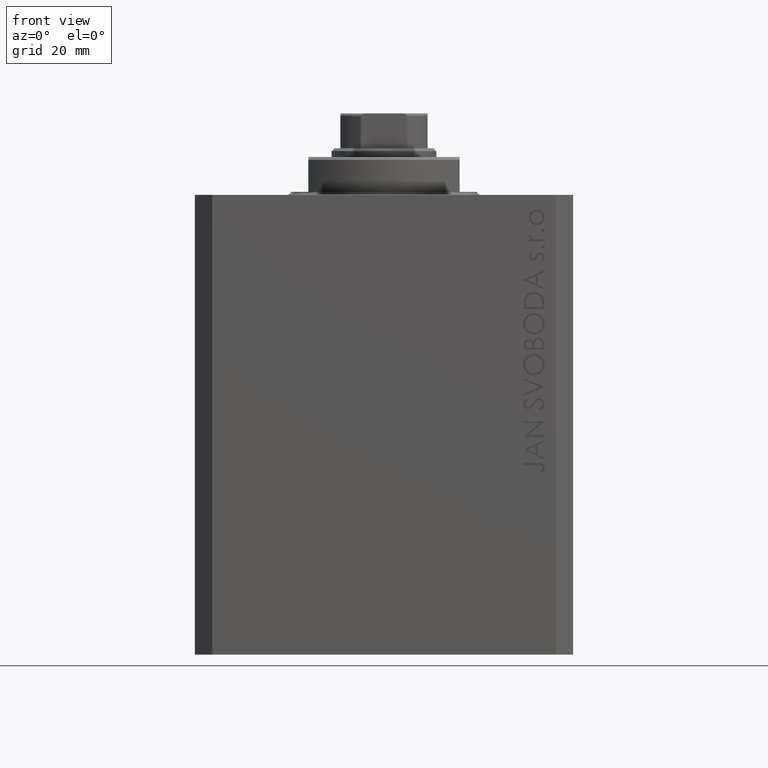
[diagram: clean part render]
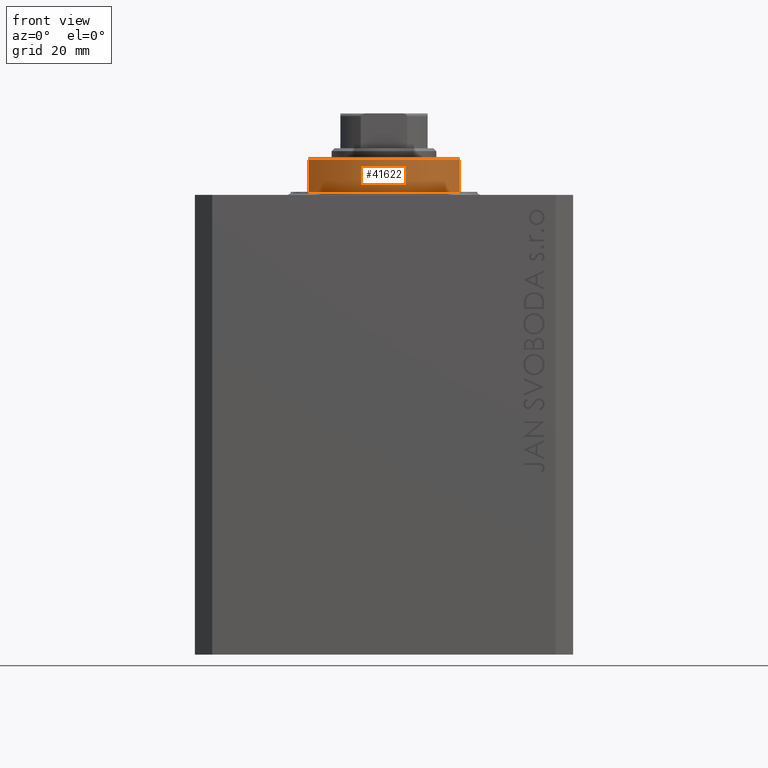
[diagram: same view with one face highlighted and labeled with its STEP entity id]
A machine part, front view. The second image highlights one B-rep face of the part: STEP entity #41622.
In plain terms, the highlighted cylindrical surface (partial cylindrical patch) has radius 16 mm, axis along (0, 0, -1).
Its self-contained STEP definition (entity closure, byte-faithful):
#729 = CARTESIAN_POINT ( 'NONE',  ( -13.00000000000000000, -9.327379053088815652, -6.000000000000023981 ) ) ;
#1129 = VERTEX_POINT ( 'NONE', #7096 ) ;
#1570 = LINE ( 'NONE', #5152, #38903 ) ;
#2461 = VECTOR ( 'NONE', #7972, 1000.000000000000000 ) ;
#4331 = CARTESIAN_POINT ( 'NONE',  ( -13.00000000000000000, -9.327379053088815652, -0.4999999999999995559 ) ) ;
#4910 = DIRECTION ( 'NONE',  ( 0.000000000000000000, 0.000000000000000000, -1.000000000000000000 ) ) ;
#5152 = CARTESIAN_POINT ( 'NONE',  ( -13.00000000000000000, -9.327379053088813876, -6.500000000000000000 ) ) ;
#6078 = ORIENTED_EDGE ( 'NONE', *, *, #28976, .T. ) ;
#6240 = EDGE_CURVE ( 'NONE', #8472, #40977, #1570, .T. ) ;
#6592 = CIRCLE ( 'NONE', #12672, 16.00000000000000000 ) ;
#6979 = DIRECTION ( 'NONE',  ( 1.000000000000000000, 0.000000000000000000, 0.000000000000000000 ) ) ;
#7096 = CARTESIAN_POINT ( 'NONE',  ( 13.00000000000000000, -9.327379053088815652, -0.4999999999999995559 ) ) ;
#7552 = DIRECTION ( 'NONE',  ( -0.000000000000000000, -0.000000000000000000, 1.000000000000000000 ) ) ;
#7972 = DIRECTION ( 'NONE',  ( 0.000000000000000000, 0.000000000000000000, -1.000000000000000000 ) ) ;
#8472 = VERTEX_POINT ( 'NONE', #4331 ) ;
#9965 = CYLINDRICAL_SURFACE ( 'NONE', #33947, 16.00000000000000000 ) ;
#10101 = CARTESIAN_POINT ( 'NONE',  ( 0.000000000000000000, 0.000000000000000000, -0.4999999999999995559 ) ) ;
#11991 = CARTESIAN_POINT ( 'NONE',  ( 13.00000000000000000, -9.327379053088815652, -6.000000000000023981 ) ) ;
#12672 = AXIS2_PLACEMENT_3D ( 'NONE', #40593, #40829, #22471 ) ;
#15117 = CARTESIAN_POINT ( 'NONE',  ( 13.00000000000000000, -9.327379053088813876, -6.500000000000000000 ) ) ;
#15383 = AXIS2_PLACEMENT_3D ( 'NONE', #10101, #25103, #6979 ) ;
#15588 = LINE ( 'NONE', #15117, #2461 ) ;
#18983 = DIRECTION ( 'NONE',  ( 1.000000000000000000, 0.000000000000000000, 0.000000000000000000 ) ) ;
#19202 = CIRCLE ( 'NONE', #15383, 16.00000000000000000 ) ;
#22471 = DIRECTION ( 'NONE',  ( -1.000000000000000000, 0.000000000000000000, 0.000000000000000000 ) ) ;
#25103 = DIRECTION ( 'NONE',  ( -0.000000000000000000, -0.000000000000000000, -1.000000000000000000 ) ) ;
#28854 = EDGE_CURVE ( 'NONE', #1129, #31228, #15588, .T. ) ;
#28976 = EDGE_CURVE ( 'NONE', #1129, #8472, #19202, .T. ) ;
#29959 = CARTESIAN_POINT ( 'NONE',  ( 0.000000000000000000, 0.000000000000000000, -6.500000000000000000 ) ) ;
#31228 = VERTEX_POINT ( 'NONE', #11991 ) ;
#33421 = ORIENTED_EDGE ( 'NONE', *, *, #6240, .T. ) ;
#33947 = AXIS2_PLACEMENT_3D ( 'NONE', #29959, #7552, #18983 ) ;
#37172 = ORIENTED_EDGE ( 'NONE', *, *, #43094, .T. ) ;
#37976 = EDGE_LOOP ( 'NONE', ( #42607, #6078, #33421, #37172 ) ) ;
#38903 = VECTOR ( 'NONE', #4910, 1000.000000000000000 ) ;
#40593 = CARTESIAN_POINT ( 'NONE',  ( 0.000000000000000000, 0.000000000000000000, -6.000000000000023981 ) ) ;
#40829 = DIRECTION ( 'NONE',  ( 0.000000000000000000, 0.000000000000000000, 1.000000000000000000 ) ) ;
#40977 = VERTEX_POINT ( 'NONE', #729 ) ;
#41622 = ADVANCED_FACE ( 'NONE', ( #42648 ), #9965, .T. ) ;
#42607 = ORIENTED_EDGE ( 'NONE', *, *, #28854, .F. ) ;
#42648 = FACE_OUTER_BOUND ( 'NONE', #37976, .T. ) ;
#43094 = EDGE_CURVE ( 'NONE', #40977, #31228, #6592, .T. ) ;